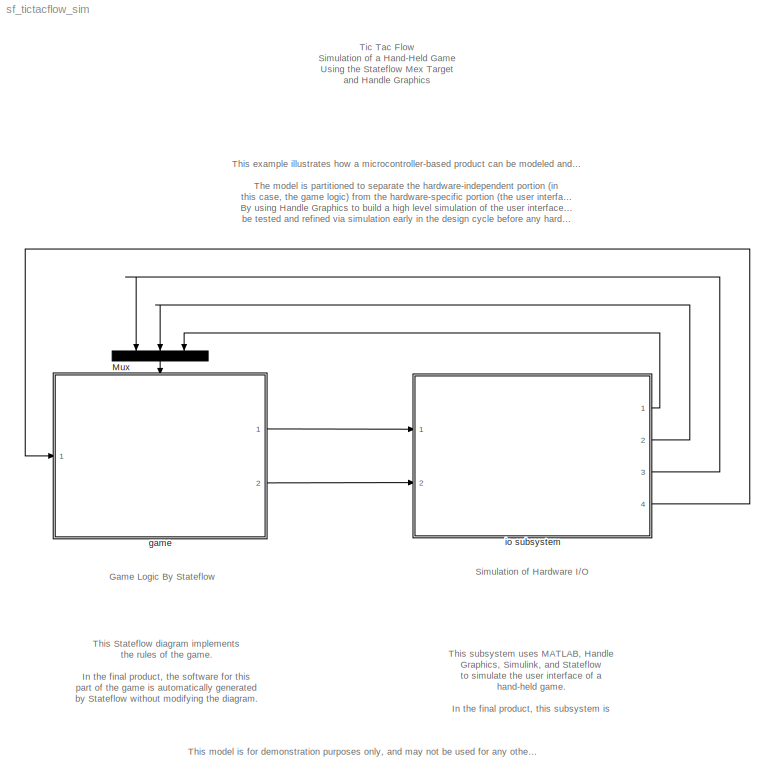
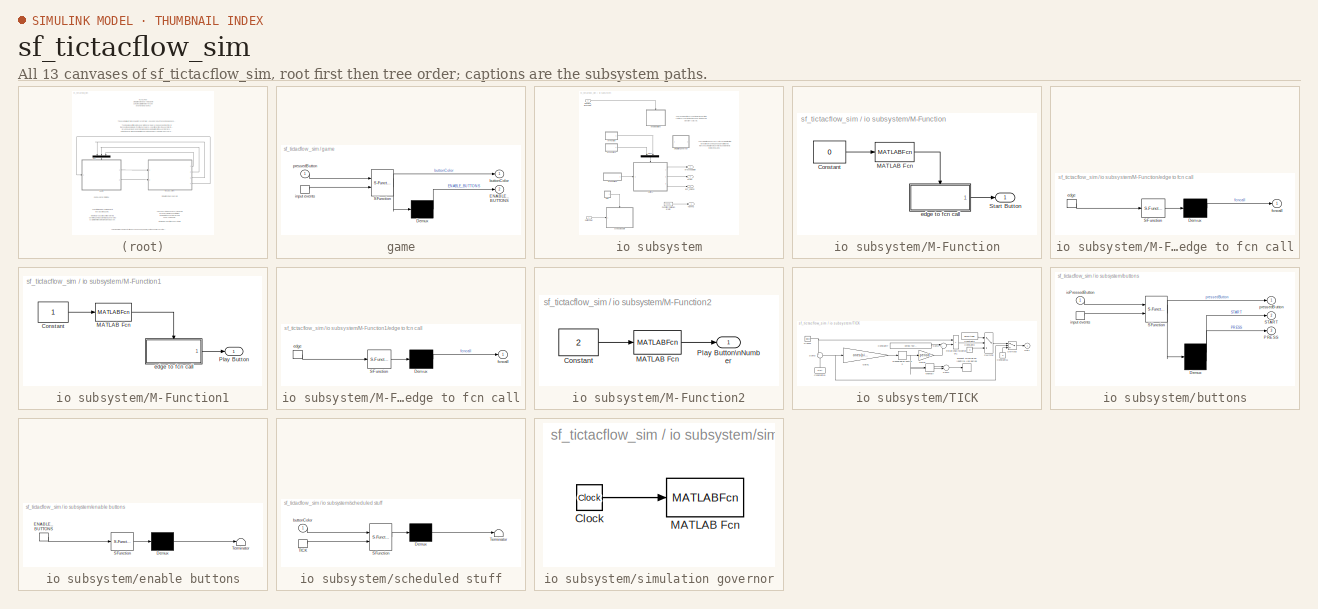
[diagram: thumbnail index - all 13 canvases of the model, root first then tree order]
MODEL sf_tictacflow_sim
KIND model
BLOCK [Mux] Mux
  DisplayOption = bar
  Inputs = 3
  Ports = [3, 1]
BLOCK [SubSystem] game
  MaskDescription = Stateflow diagram
  MaskDisplay = plot(sf('Private','sfblk','xIcon'),sf('Private','sfblk','yIcon'));text(0.5,0,sf('Private', 'sfblk', 'tIcon'),'HorizontalAl','Center','VerticalAl','Bottom');
  MaskIconFrame = off
  MaskIconOpaque = off
  MaskIconRotate = none
  MaskIconUnits = autoscale
  MaskSelfModifiable = on
  MaskType = Stateflow
  MinAlgLoopOccurrences = off
  Ports = [1, 2, 0, 1]
  PropExecContextAcrossSSBoundary = on
  RTWSystemCode = Auto
  TreatAsAtomicUnit = on
BLOCK [Demux] game/ Demux 
  Outputs = 1
  Ports = [1, 1]
BLOCK [S-Function] game/ SFunction 
  FunctionName = sf_sfun
  PortCounts = [2 2]
  Ports = [2, 2]
  Tag = Stateflow S-Function sf_tictacflow_sim 8
BLOCK [TriggerPort] game/ input events 
  Ports = [0, 1]
  ShowOutputPort = on
  TriggerType = function-call
BLOCK [Outport] game/ENABLE_BUTTONS
  IconDisplay = Port number
  Port = 2
BLOCK [Outport] game/buttonColor
  IconDisplay = Port number
BLOCK [Inport] game/pressedButton
  IconDisplay = Port number
  LatchInput = off
  Port = 1
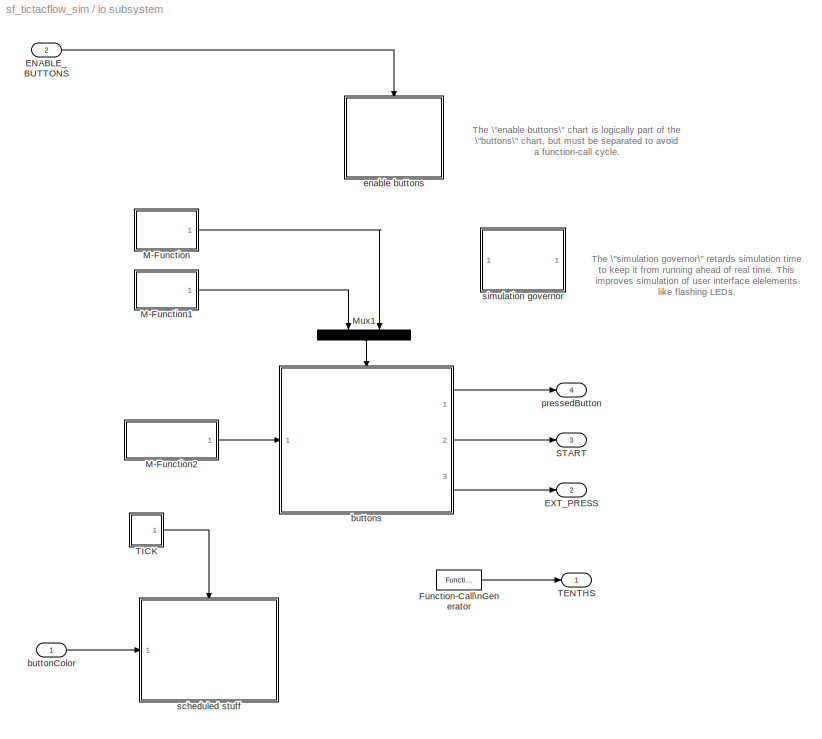
BLOCK [SubSystem] io subsystem
  MinAlgLoopOccurrences = off
  Ports = [2, 4]
  PropExecContextAcrossSSBoundary = on
  RTWSystemCode = Auto
  StopFcn = if ishandle(1.000000); delete(1.000000); end;
  TreatAsAtomicUnit = off
BLOCK [Inport] io subsystem/ENABLE_BUTTONS
  IconDisplay = Port number
  LatchInput = off
  Port = 2
BLOCK [Outport] io subsystem/EXT_PRESS
  IconDisplay = Port number
  Port = 2
BLOCK [Reference] io subsystem/Function-Call\nGenerator  REF=simulink3/Signals\n& Systems/Function-Call\nGenerator
  Ports = [0, 1]
  SourceBlock = simulink3/Signals\n& Systems/Function-Call\nGenerator
  SourceType = Function-Call Generator
  numberOfIterations = 1
  sample_time = 0.1
BLOCK [SubSystem] io subsystem/M-Function
  MinAlgLoopOccurrences = off
  Ports = [0, 1]
  PropExecContextAcrossSSBoundary = on
  RTWSystemCode = Auto
  TreatAsAtomicUnit = off
BLOCK [Constant] io subsystem/M-Function/Constant
  Value = 0
BLOCK [MATLABFcn] io subsystem/M-Function/MATLAB Fcn
  MATLABFcn = sf_tictacflow_simgui
BLOCK [Outport] io subsystem/M-Function/Start Button
  IconDisplay = Port number
BLOCK [SubSystem] io subsystem/M-Function/edge to fcn call
  MaskDescription = Stateflow diagram
  MaskDisplay = plot(sf('Private','sfblk','xIcon'),sf('Private','sfblk','yIcon'));text(0.5,0,sf('Private', 'sfblk', 'tIcon'),'HorizontalAl','Center','VerticalAl','Bottom');
  MaskIconFrame = off
  MaskIconOpaque = off
  MaskIconRotate = none
  MaskIconUnits = autoscale
  MaskSelfModifiable = on
  MaskType = Stateflow
  MinAlgLoopOccurrences = off
  Ports = [0, 1, 0, 1]
  PropExecContextAcrossSSBoundary = on
  RTWSystemCode = Auto
  TreatAsAtomicUnit = on
BLOCK [Demux] io subsystem/M-Function/edge to fcn call/ Demux 
  Outputs = 1
  Ports = [1, 1]
BLOCK [S-Function] io subsystem/M-Function/edge to fcn call/ SFunction 
  FunctionName = sf_sfun
  PortCounts = [1 1]
  Ports = [1, 1]
  Tag = Stateflow S-Function sf_tictacflow_sim 2
BLOCK [TriggerPort] io subsystem/M-Function/edge to fcn call/edge
  Ports = [0, 1]
  ShowOutputPort = on
  TriggerType = either
BLOCK [Outport] io subsystem/M-Function/edge to fcn call/fcncall
  IconDisplay = Port number
BLOCK [SubSystem] io subsystem/M-Function1
  MinAlgLoopOccurrences = off
  Ports = [0, 1]
  PropExecContextAcrossSSBoundary = on
  RTWSystemCode = Auto
  TreatAsAtomicUnit = off
BLOCK [Constant] io subsystem/M-Function1/Constant
BLOCK [MATLABFcn] io subsystem/M-Function1/MATLAB Fcn
  MATLABFcn = sf_tictacflow_simgui
BLOCK [Outport] io subsystem/M-Function1/Play Button
  IconDisplay = Port number
BLOCK [SubSystem] io subsystem/M-Function1/edge to fcn call
  MaskDescription = Stateflow diagram
  MaskDisplay = plot(sf('Private','sfblk','xIcon'),sf('Private','sfblk','yIcon'));text(0.5,0,sf('Private', 'sfblk', 'tIcon'),'HorizontalAl','Center','VerticalAl','Bottom');
  MaskIconFrame = off
  MaskIconOpaque = off
  MaskIconRotate = none
  MaskIconUnits = autoscale
  MaskSelfModifiable = on
  MaskType = Stateflow
  MinAlgLoopOccurrences = off
  Ports = [0, 1, 0, 1]
  PropExecContextAcrossSSBoundary = on
  RTWSystemCode = Auto
  TreatAsAtomicUnit = on
BLOCK [Demux] io subsystem/M-Function1/edge to fcn call/ Demux 
  Outputs = 1
  Ports = [1, 1]
BLOCK [S-Function] io subsystem/M-Function1/edge to fcn call/ SFunction 
  FunctionName = sf_sfun
  PortCounts = [1 1]
  Ports = [1, 1]
  Tag = Stateflow S-Function sf_tictacflow_sim 1
BLOCK [TriggerPort] io subsystem/M-Function1/edge to fcn call/edge
  Ports = [0, 1]
  ShowOutputPort = on
  TriggerType = either
BLOCK [Outport] io subsystem/M-Function1/edge to fcn call/fcncall
  IconDisplay = Port number
BLOCK [SubSystem] io subsystem/M-Function2
  MinAlgLoopOccurrences = off
  Ports = [0, 1]
  PropExecContextAcrossSSBoundary = on
  RTWSystemCode = Auto
  TreatAsAtomicUnit = off
BLOCK [Constant] io subsystem/M-Function2/Constant
  Value = 2
BLOCK [MATLABFcn] io subsystem/M-Function2/MATLAB Fcn
  MATLABFcn = sf_tictacflow_simgui
BLOCK [Outport] io subsystem/M-Function2/Play Button\nNumber
  IconDisplay = Port number
BLOCK [Mux] io subsystem/Mux1
  DisplayOption = bar
  Inputs = 2
  Ports = [2, 1]
BLOCK [Outport] io subsystem/START
  IconDisplay = Port number
  Port = 3
BLOCK [Outport] io subsystem/TENTHS
  IconDisplay = Port number
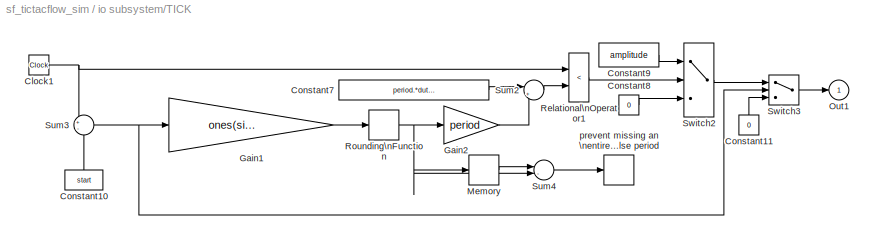
BLOCK [SubSystem] io subsystem/TICK
  MaskCallbackString = |||
  MaskDescription = Pulse Generator
  MaskDisplay = plot(0,0,100,100,[95,90,90,75,75,60,60,45,45,30,30,15,15,5],[25,25,75,75,25,25,75,75,25,25,75,75,25,25]);
  MaskEnableString = on,on,on,on
  MaskHelp = Pulse generator which ensures pulse transitions are hit. Provides a vector of pulses when the height is entered as a vector.  Unmask to see how it works.
  MaskIconFrame = on
  MaskIconOpaque = on
  MaskIconRotate = none
  MaskIconUnits = autoscale
  MaskInitialization = \n
  MaskPromptString = Period (secs):|Duty cycle (% of period):|Amplitude:|Start time:
  MaskStyleString = edit,edit,edit,edit
  MaskTabNameString = ,,,
  MaskToolTipString = on,on,on,on
  MaskTunableValueString = on,on,on,on
  MaskType = Pulse Generator
  MaskValueString = 1/20|50|1|0
  MaskVarAliasString = ,,,
  MaskVariables = period=@1;duty=@2;amplitude=@3;start=@4;
  MaskVisibilityString = on,on,on,on
  MinAlgLoopOccurrences = off
  Ports = [0, 1]
  PropExecContextAcrossSSBoundary = on
  RTWSystemCode = Auto
  TreatAsAtomicUnit = off
BLOCK [Clock] io subsystem/TICK/Clock1
  Decimation = 10
BLOCK [Constant] io subsystem/TICK/Constant10
  Value = start
BLOCK [Constant] io subsystem/TICK/Constant11
  Value = 0
BLOCK [Constant] io subsystem/TICK/Constant7
  Value = period.*duty/100 + start
BLOCK [Constant] io subsystem/TICK/Constant8
  Value = 0
BLOCK [Constant] io subsystem/TICK/Constant9
  Value = amplitude
BLOCK [Gain] io subsystem/TICK/Gain1
  Gain = ones(size(period))./period
BLOCK [Gain] io subsystem/TICK/Gain2
  Gain = period
BLOCK [Memory] io subsystem/TICK/Memory
BLOCK [Outport] io subsystem/TICK/Out1
  IconDisplay = Port number
BLOCK [RelationalOperator] io subsystem/TICK/Relational\nOperator1
  Operator = <
BLOCK [Rounding] io subsystem/TICK/Rounding\nFunction
BLOCK [Sum] io subsystem/TICK/Sum2
  IconShape = round
  Inputs = |++
  Ports = [2, 1]
BLOCK [Sum] io subsystem/TICK/Sum3
  IconShape = round
  Inputs = +-
  Ports = [2, 1]
BLOCK [Sum] io subsystem/TICK/Sum4
  IconShape = round
  Inputs = |-+
  Ports = [2, 1]
BLOCK [Switch] io subsystem/TICK/Switch2
  Threshold = 0.5
BLOCK [Switch] io subsystem/TICK/Switch3
BLOCK [HitCross] io subsystem/TICK/prevent missing an \nentire pulse period
  HitCrossingDirection = either
  HitCrossingOffset = 1
  Ports = [1]
  ShowOutputPort = off
BLOCK [Inport] io subsystem/buttonColor
  IconDisplay = Port number
  LatchInput = off
  Port = 1
BLOCK [SubSystem] io subsystem/buttons
  MaskDescription = Stateflow diagram
  MaskDisplay = plot(sf('Private','sfblk','xIcon'),sf('Private','sfblk','yIcon'));text(0.5,0,sf('Private', 'sfblk', 'tIcon'),'HorizontalAl','Center','VerticalAl','Bottom');
  MaskIconFrame = off
  MaskIconOpaque = off
  MaskIconRotate = none
  MaskIconUnits = autoscale
  MaskSelfModifiable = on
  MaskType = Stateflow
  MinAlgLoopOccurrences = off
  Ports = [1, 3, 0, 1]
  PropExecContextAcrossSSBoundary = on
  RTWSystemCode = Auto
  TreatAsAtomicUnit = on
BLOCK [Demux] io subsystem/buttons/ Demux 
  Outputs = 2
  Ports = [1, 2]
BLOCK [S-Function] io subsystem/buttons/ SFunction 
  FunctionName = sf_sfun
  PortCounts = [2 2]
  Ports = [2, 2]
  Tag = Stateflow S-Function sf_tictacflow_sim 10
BLOCK [TriggerPort] io subsystem/buttons/ input events 
  Ports = [0, 1]
  ShowOutputPort = on
  TriggerType = function-call
BLOCK [Outport] io subsystem/buttons/PRESS
  IconDisplay = Port number
  Port = 3
BLOCK [Outport] io subsystem/buttons/START
  IconDisplay = Port number
  Port = 2
BLOCK [Inport] io subsystem/buttons/ioPressedButton
  IconDisplay = Port number
  LatchInput = off
  Port = 1
BLOCK [Outport] io subsystem/buttons/pressedButton
  IconDisplay = Port number
BLOCK [SubSystem] io subsystem/enable buttons
  MaskDescription = Stateflow diagram
  MaskDisplay = plot(sf('Private','sfblk','xIcon'),sf('Private','sfblk','yIcon'));text(0.5,0,sf('Private', 'sfblk', 'tIcon'),'HorizontalAl','Center','VerticalAl','Bottom');
  MaskIconFrame = off
  MaskIconOpaque = off
  MaskIconRotate = none
  MaskIconUnits = autoscale
  MaskSelfModifiable = on
  MaskType = Stateflow
  MinAlgLoopOccurrences = off
  Ports = [0, 0, 0, 1]
  PropExecContextAcrossSSBoundary = on
  RTWSystemCode = Auto
  TreatAsAtomicUnit = on
BLOCK [Demux] io subsystem/enable buttons/ Demux 
  Outputs = 1
  Ports = [1, 1]
BLOCK [S-Function] io subsystem/enable buttons/ SFunction 
  FunctionName = sf_sfun
  PortCounts = [1 1]
  Ports = [1, 1]
  Tag = Stateflow S-Function sf_tictacflow_sim 3
BLOCK [Terminator] io subsystem/enable buttons/ Terminator 
BLOCK [TriggerPort] io subsystem/enable buttons/ENABLE_BUTTONS
  Ports = [0, 1]
  ShowOutputPort = on
  TriggerType = function-call
BLOCK [Outport] io subsystem/pressedButton
  IconDisplay = Port number
  Port = 4
BLOCK [SubSystem] io subsystem/scheduled stuff
  MaskDescription = Stateflow diagram
  MaskDisplay = plot(sf('Private','sfblk','xIcon'),sf('Private','sfblk','yIcon'));text(0.5,0,sf('Private', 'sfblk', 'tIcon'),'HorizontalAl','Center','VerticalAl','Bottom');
  MaskIconFrame = off
  MaskIconOpaque = off
  MaskIconRotate = none
  MaskIconUnits = autoscale
  MaskSelfModifiable = on
  MaskType = Stateflow
  MinAlgLoopOccurrences = off
  Ports = [1, 0, 0, 1]
  PropExecContextAcrossSSBoundary = on
  RTWSystemCode = Auto
  TreatAsAtomicUnit = on
BLOCK [Demux] io subsystem/scheduled stuff/ Demux 
  Outputs = 1
  Ports = [1, 1]
BLOCK [S-Function] io subsystem/scheduled stuff/ SFunction 
  FunctionName = sf_sfun
  PortCounts = [2 1]
  Ports = [2, 1]
  Tag = Stateflow S-Function sf_tictacflow_sim 11
BLOCK [Terminator] io subsystem/scheduled stuff/ Terminator 
BLOCK [TriggerPort] io subsystem/scheduled stuff/TICK
  Ports = [0, 1]
  ShowOutputPort = on
  TriggerType = either
BLOCK [Inport] io subsystem/scheduled stuff/buttonColor
  IconDisplay = Port number
  LatchInput = off
  Port = 1
BLOCK [SubSystem] io subsystem/simulation governor
  MinAlgLoopOccurrences = off
  Ports = []
  PropExecContextAcrossSSBoundary = on
  RTWSystemCode = Auto
  TreatAsAtomicUnit = off
BLOCK [Clock] io subsystem/simulation governor/Clock
  Decimation = 10
BLOCK [MATLABFcn] io subsystem/simulation governor/MATLAB Fcn
  MATLABFcn = sf_simtime_throttle
  OutputDimensions = 0
ANNOTATION (root): Game Logic By Stateflow
ANNOTATION (root): Simulation of Hardware I/O
ANNOTATION (root): This Stateflow diagram implements\nthe rules of the game.\n\nIn the final product, the software for this \npart of the game is automatically generated\n by Stateflow without modifying the diagram.
ANNOTATION (root): This example illustrates how a microcontroller-based product can be modeled and implemented using Stateflow.\n\nThe model is partitioned to separate the hardware-independent portion (in \nthis case, the game logic) from the hardware-specific portion (the user interface).\nBy using Handle Graphics to build a high level simulation of the user interface, the product concept can\n be tested and refine...<+307ch>
ANNOTATION (root): This model is for demonstration purposes only, and may not be used for any other purpose.
ANNOTATION (root): This subsystem uses MATLAB, Handle \nGraphics, Simulink, and Stateflow\n to simulate the user interface of a \nhand-held game.\n\nIn the final product, this subsystem is \nreplaced by electronic hardware and \nlow level driver software.
ANNOTATION (root): Tic Tac Flow\nSimulation of a Hand-Held Game\nUsing the Stateflow Mex Target\nand Handle Graphics
ANNOTATION io subsystem: The \"enable buttons\" chart is logically part of the \n\"buttons\" chart, but must be separated to avoid\na function-call cycle.
ANNOTATION io subsystem: The \"simulation governor\" retards simulation time\nto keep it from running ahead of real time. This\nimproves simulation of user interface elelements\nlike flashing LEDs.
LINE Mux:1 -> game:trigger
LINE game/ Demux :1 -> game/ENABLE_BUTTONS:1
LINE game/ SFunction :1 -> game/ Demux :1
LINE game/ SFunction :2 -> game/buttonColor:1
LINE game/ input events :1 -> game/ SFunction :2
LINE game/pressedButton:1 -> game/ SFunction :1
LINE game:1 -> io subsystem:1
LINE game:2 -> io subsystem:2
LINE io subsystem/ENABLE_BUTTONS:1 -> io subsystem/enable buttons:trigger
LINE io subsystem/Function-Call\nGenerator:1 -> io subsystem/TENTHS:1
LINE io subsystem/M-Function/Constant:1 -> io subsystem/M-Function/MATLAB Fcn:1
LINE io subsystem/M-Function/MATLAB Fcn:1 -> io subsystem/M-Function/edge to fcn call:trigger
LINE io subsystem/M-Function/edge to fcn call/ Demux :1 -> io subsystem/M-Function/edge to fcn call/fcncall:1
LINE io subsystem/M-Function/edge to fcn call/ SFunction :1 -> io subsystem/M-Function/edge to fcn call/ Demux :1
LINE io subsystem/M-Function/edge to fcn call/edge:1 -> io subsystem/M-Function/edge to fcn call/ SFunction :1
LINE io subsystem/M-Function/edge to fcn call:1 -> io subsystem/M-Function/Start Button:1
LINE io subsystem/M-Function1/Constant:1 -> io subsystem/M-Function1/MATLAB Fcn:1
LINE io subsystem/M-Function1/MATLAB Fcn:1 -> io subsystem/M-Function1/edge to fcn call:trigger
LINE io subsystem/M-Function1/edge to fcn call/ Demux :1 -> io subsystem/M-Function1/edge to fcn call/fcncall:1
LINE io subsystem/M-Function1/edge to fcn call/ SFunction :1 -> io subsystem/M-Function1/edge to fcn call/ Demux :1
LINE io subsystem/M-Function1/edge to fcn call/edge:1 -> io subsystem/M-Function1/edge to fcn call/ SFunction :1
LINE io subsystem/M-Function1/edge to fcn call:1 -> io subsystem/M-Function1/Play Button:1
LINE io subsystem/M-Function1:1 -> io subsystem/Mux1:1
LINE io subsystem/M-Function2/Constant:1 -> io subsystem/M-Function2/MATLAB Fcn:1
LINE io subsystem/M-Function2/MATLAB Fcn:1 -> io subsystem/M-Function2/Play Button\nNumber:1
LINE io subsystem/M-Function2:1 -> io subsystem/buttons:1
LINE io subsystem/M-Function:1 -> io subsystem/Mux1:2
LINE io subsystem/Mux1:1 -> io subsystem/buttons:trigger
NET io subsystem/TICK/Clock1:1 -> io subsystem/TICK/Relational\nOperator1:1, io subsystem/TICK/Sum3:1
LINE io subsystem/TICK/Constant10:1 -> io subsystem/TICK/Sum3:2
LINE io subsystem/TICK/Constant11:1 -> io subsystem/TICK/Switch3:3
LINE io subsystem/TICK/Constant7:1 -> io subsystem/TICK/Sum2:1
LINE io subsystem/TICK/Constant8:1 -> io subsystem/TICK/Switch2:3
LINE io subsystem/TICK/Constant9:1 -> io subsystem/TICK/Switch2:1
LINE io subsystem/TICK/Gain1:1 -> io subsystem/TICK/Rounding\nFunction:1
LINE io subsystem/TICK/Gain2:1 -> io subsystem/TICK/Sum2:2
LINE io subsystem/TICK/Memory:1 -> io subsystem/TICK/Sum4:1
LINE io subsystem/TICK/Relational\nOperator1:1 -> io subsystem/TICK/Switch2:2
NET io subsystem/TICK/Rounding\nFunction:1 -> io subsystem/TICK/Gain2:1, io subsystem/TICK/Memory:1, io subsystem/TICK/Sum4:2
LINE io subsystem/TICK/Sum2:1 -> io subsystem/TICK/Relational\nOperator1:2
NET io subsystem/TICK/Sum3:1 -> io subsystem/TICK/Gain1:1, io subsystem/TICK/Switch3:2
LINE io subsystem/TICK/Sum4:1 -> io subsystem/TICK/prevent missing an \nentire pulse period:1
LINE io subsystem/TICK/Switch2:1 -> io subsystem/TICK/Switch3:1
LINE io subsystem/TICK/Switch3:1 -> io subsystem/TICK/Out1:1
LINE io subsystem/TICK:1 -> io subsystem/scheduled stuff:trigger
LINE io subsystem/buttonColor:1 -> io subsystem/scheduled stuff:1
LINE io subsystem/buttons/ Demux :1 -> io subsystem/buttons/START:1
LINE io subsystem/buttons/ Demux :2 -> io subsystem/buttons/PRESS:1
LINE io subsystem/buttons/ SFunction :1 -> io subsystem/buttons/ Demux :1
LINE io subsystem/buttons/ SFunction :2 -> io subsystem/buttons/pressedButton:1
LINE io subsystem/buttons/ input events :1 -> io subsystem/buttons/ SFunction :2
LINE io subsystem/buttons/ioPressedButton:1 -> io subsystem/buttons/ SFunction :1
LINE io subsystem/buttons:1 -> io subsystem/pressedButton:1
LINE io subsystem/buttons:2 -> io subsystem/START:1
LINE io subsystem/buttons:3 -> io subsystem/EXT_PRESS:1
LINE io subsystem/enable buttons/ Demux :1 -> io subsystem/enable buttons/ Terminator :1
LINE io subsystem/enable buttons/ SFunction :1 -> io subsystem/enable buttons/ Demux :1
LINE io subsystem/enable buttons/ENABLE_BUTTONS:1 -> io subsystem/enable buttons/ SFunction :1
LINE io subsystem/scheduled stuff/ Demux :1 -> io subsystem/scheduled stuff/ Terminator :1
LINE io subsystem/scheduled stuff/ SFunction :1 -> io subsystem/scheduled stuff/ Demux :1
LINE io subsystem/scheduled stuff/TICK:1 -> io subsystem/scheduled stuff/ SFunction :2
LINE io subsystem/scheduled stuff/buttonColor:1 -> io subsystem/scheduled stuff/ SFunction :1
LINE io subsystem/simulation governor/Clock:1 -> io subsystem/simulation governor/MATLAB Fcn:1
LINE io subsystem:1 -> Mux:3
LINE io subsystem:2 -> Mux:2
LINE io subsystem:3 -> Mux:1
LINE io subsystem:4 -> game:1
note: NET lines group one-source signal fan-out (src -> all destinations, sorted); 1:1 wires keep LINE
CHART io subsystem/M-Function1/edge to fcn call states=0 transitions=1
CHART io subsystem/M-Function/edge to fcn call states=0 transitions=1
CHART io subsystem/enable buttons states=1 transitions=0
  STATE_LABEL "enable_buttons\\non ENABLE_BUTTONS:\\n  ml.set(buttonH[0],'Enable','On');\\n  ml.set(buttonH[1],'Enable','On');\\n  ml.set(buttonH[2],'Enable','On');\\n  ml.set(buttonH[3],'Enable','On');\\n  ml.set(buttonH[4],'Enable','On');\\n  ml.set(buttonH[5],'Enable','On');\\n  ml.set(buttonH[6],'Enable','On');\\n  ml.set(buttonH[7],'Enable','On');\\n  ml.set(buttonH[8],'Enable','On');"
CHART game states=66 transitions=121
  STATE_LABEL 'button_7'
  STATE_LABEL 'enabled\\nbuttonColor[thisButton] = DARK;'
  STATE_LABEL 'disabled'
  STATE_LABEL 'active'
  STATE_LABEL 'red\\nbuttonColor[thisButton] = RED;\\nTURN;'
  STATE_LABEL 'green\\nbuttonColor[thisButton] = GREEN;\\nTURN;'
  STATE_LABEL 'button_0'
  STATE_LABEL 'disabled'
  STATE_LABEL 'enabled\\nbuttonColor[thisButton] = DARK;'
  STATE_LABEL 'active'
  STATE_LABEL 'red\\nbuttonColor[thisButton] = RED;\\nTURN;'
  STATE_LABEL 'green\\nbuttonColor[thisButton] = GREEN;\\nTURN;'
  STATE_LABEL 'button_5'
  STATE_LABEL 'disabled'
  STATE_LABEL 'enabled\\nbuttonColor[thisButton] = DARK;'
  STATE_LABEL 'active'
  STATE_LABEL 'red\\nbuttonColor[thisButton] = RED;\\nTURN;'
  STATE_LABEL 'green\\nbuttonColor[thisButton] = GREEN;\\nTURN;'
  STATE_LABEL 'button_2'
  STATE_LABEL 'disabled'
  STATE_LABEL 'enabled\\nbuttonColor[thisButton] = DARK;'
  STATE_LABEL 'active'
  STATE_LABEL 'red\\nbuttonColor[thisButton] = RED;\\nTURN;'
  STATE_LABEL 'green\\nbuttonColor[thisButton] = GREEN;\\nTURN;'
  STATE_LABEL 'button_4'
  STATE_LABEL 'disabled'
  STATE_LABEL 'enabled\\nbuttonColor[thisButton] = DARK;'
  STATE_LABEL 'active'
  STATE_LABEL 'red\\nbuttonColor[thisButton] = RED;\\nTURN;'
  STATE_LABEL 'green\\nbuttonColor[thisButton] = GREEN;\\nTURN;'
  STATE_LABEL 'button_6'
  STATE_LABEL 'disabled'
  STATE_LABEL 'enabled\\nbuttonColor[thisButton] = DARK;'
  STATE_LABEL 'active'
  STATE_LABEL 'red\\nbuttonColor[thisButton] = RED;\\nTURN;'
  STATE_LABEL 'green\\nbuttonColor[thisButton] = GREEN;\\nTURN;'
  STATE_LABEL 'button_3'
  STATE_LABEL 'disabled'
  STATE_LABEL 'enabled\\nbuttonColor[thisButton] = DARK;'
  STATE_LABEL 'active'
CHART io subsystem/buttons states=1 transitions=5
  STATE_LABEL "io\\nen:\\n  figH = ml.sf_tictacflow_simgui('fig');\\n  ml.set(figH,'Pointer','arrow');\\n  /* note mapping between magic numbers and button location:\\n     buttonH[magic] = ml.play_button_magic(figH,location,magic);  */\\n  buttonH[0] = ml.sf_tictacflow_simgui('play_button',figH,1,0);\\n  buttonH[1] = ml.sf_tictacflow_simgui('play_button',figH,8,1);\\n  buttonH[2] = ml.sf_tictacflow_simgui('play_button'...<+527ch>"
CHART io subsystem/scheduled stuff states=2 transitions=6
  STATE_LABEL 'stop'
  STATE_LABEL 'update_LEDs'
